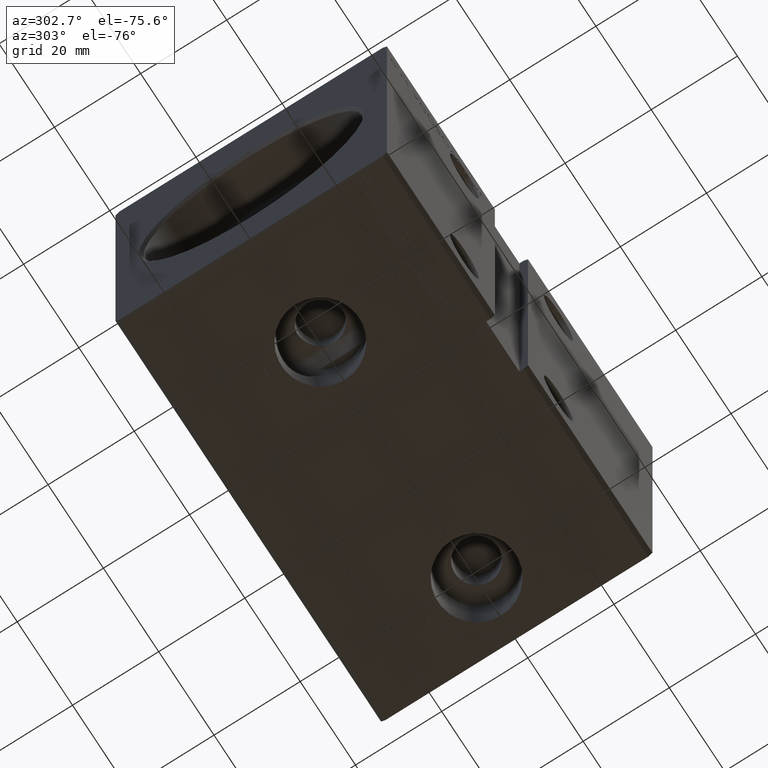
[diagram: clean part render]
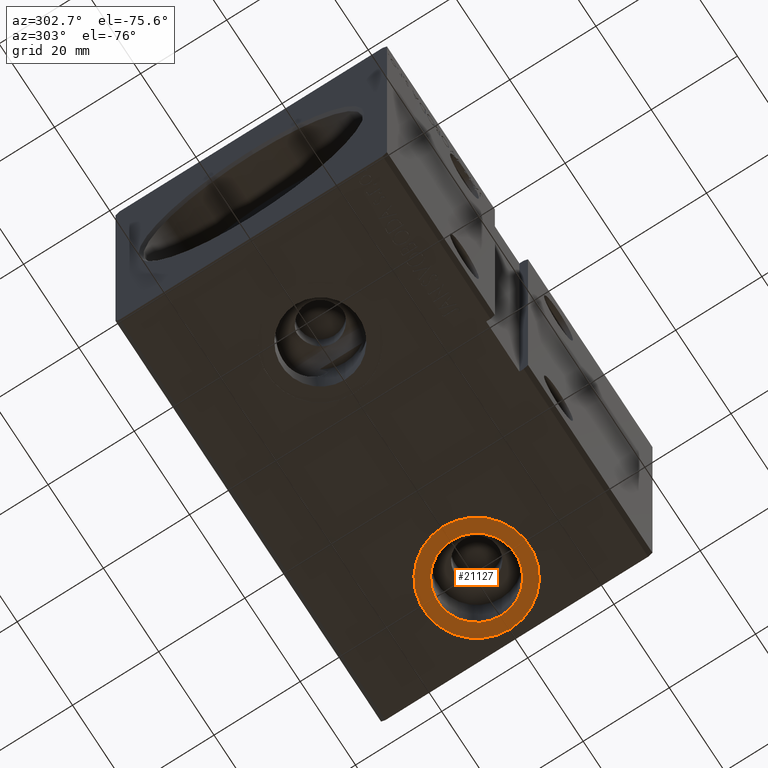
[diagram: same view with one face highlighted and labeled with its STEP entity id]
A machine part, auxiliary view. The second image highlights one B-rep face of the part: STEP entity #21127.
In plain terms, the highlighted planar face has unit normal (0, 0, -1).
Its self-contained STEP definition (entity closure, byte-faithful):
#1695 = CIRCLE ( 'NONE', #6980, 12.24999999999999645 ) ;
#5604 = CIRCLE ( 'NONE', #22813, 12.24999999999999645 ) ;
#6269 = DIRECTION ( 'NONE',  ( 0.000000000000000000, 0.000000000000000000, -1.000000000000000000 ) ) ;
#6493 = EDGE_CURVE ( 'NONE', #7454, #15627, #40913, .T. ) ;
#6518 = CARTESIAN_POINT ( 'NONE',  ( 90.50000000000000000, -8.809205824358827446E-15, -42.40000000000000568 ) ) ;
#6710 = CIRCLE ( 'NONE', #40456, 8.999999999999994671 ) ;
#6980 = AXIS2_PLACEMENT_3D ( 'NONE', #22647, #13534, #38164 ) ;
#7454 = VERTEX_POINT ( 'NONE', #33016 ) ;
#10671 = ORIENTED_EDGE ( 'NONE', *, *, #22581, .T. ) ;
#11229 = ORIENTED_EDGE ( 'NONE', *, *, #26315, .T. ) ;
#13534 = DIRECTION ( 'NONE',  ( 0.000000000000000000, 0.000000000000000000, -1.000000000000000000 ) ) ;
#14878 = VERTEX_POINT ( 'NONE', #16672 ) ;
#15135 = DIRECTION ( 'NONE',  ( -1.000000000000000000, 0.000000000000000000, 0.000000000000000000 ) ) ;
#15326 = VERTEX_POINT ( 'NONE', #36020 ) ;
#15401 = DIRECTION ( 'NONE',  ( -1.000000000000000000, 0.000000000000000000, 0.000000000000000000 ) ) ;
#15627 = VERTEX_POINT ( 'NONE', #6518 ) ;
#16672 = CARTESIAN_POINT ( 'NONE',  ( 69.25000000000000000, -9.911387943591445357E-15, -42.40000000000000568 ) ) ;
#18459 = DIRECTION ( 'NONE',  ( 0.000000000000000000, 0.000000000000000000, -1.000000000000000000 ) ) ;
#18613 = DIRECTION ( 'NONE',  ( 0.000000000000000000, 0.000000000000000000, -1.000000000000000000 ) ) ;
#18808 = CARTESIAN_POINT ( 'NONE',  ( 81.50000000000000000, -9.911387943591445357E-15, -42.40000000000000568 ) ) ;
#21127 = ADVANCED_FACE ( 'NONE', ( #30620, #36823 ), #39935, .T. ) ;
#21518 = DIRECTION ( 'NONE',  ( -1.000000000000000000, 0.000000000000000000, -0.000000000000000000 ) ) ;
#21593 = DIRECTION ( 'NONE',  ( 0.000000000000000000, 0.000000000000000000, -1.000000000000000000 ) ) ;
#22581 = EDGE_CURVE ( 'NONE', #15326, #14878, #5604, .T. ) ;
#22647 = CARTESIAN_POINT ( 'NONE',  ( 81.50000000000000000, -9.911387943591445357E-15, -42.40000000000000568 ) ) ;
#22803 = EDGE_LOOP ( 'NONE', ( #11229, #10671 ) ) ;
#22813 = AXIS2_PLACEMENT_3D ( 'NONE', #40212, #21593, #39807 ) ;
#23076 = AXIS2_PLACEMENT_3D ( 'NONE', #25130, #6269, #15401 ) ;
#24350 = EDGE_LOOP ( 'NONE', ( #28039, #38796 ) ) ;
#25130 = CARTESIAN_POINT ( 'NONE',  ( 81.50000000000000000, -9.911387943591445357E-15, -42.40000000000000568 ) ) ;
#26315 = EDGE_CURVE ( 'NONE', #14878, #15326, #1695, .T. ) ;
#28039 = ORIENTED_EDGE ( 'NONE', *, *, #6493, .F. ) ;
#29386 = AXIS2_PLACEMENT_3D ( 'NONE', #18808, #18613, #21518 ) ;
#29966 = EDGE_CURVE ( 'NONE', #15627, #7454, #6710, .T. ) ;
#30620 = FACE_BOUND ( 'NONE', #24350, .T. ) ;
#33016 = CARTESIAN_POINT ( 'NONE',  ( 72.50000000000001421, -9.911387943591445357E-15, -42.40000000000000568 ) ) ;
#33765 = CARTESIAN_POINT ( 'NONE',  ( 81.50000000000000000, -9.911387943591445357E-15, -42.40000000000000568 ) ) ;
#36020 = CARTESIAN_POINT ( 'NONE',  ( 93.75000000000001421, -8.411195614635935059E-15, -42.40000000000000568 ) ) ;
#36823 = FACE_OUTER_BOUND ( 'NONE', #22803, .T. ) ;
#38164 = DIRECTION ( 'NONE',  ( -1.000000000000000000, 0.000000000000000000, 0.000000000000000000 ) ) ;
#38796 = ORIENTED_EDGE ( 'NONE', *, *, #29966, .F. ) ;
#39807 = DIRECTION ( 'NONE',  ( -1.000000000000000000, 0.000000000000000000, 0.000000000000000000 ) ) ;
#39935 = PLANE ( 'NONE',  #29386 ) ;
#40212 = CARTESIAN_POINT ( 'NONE',  ( 81.50000000000000000, -9.911387943591445357E-15, -42.40000000000000568 ) ) ;
#40456 = AXIS2_PLACEMENT_3D ( 'NONE', #33765, #18459, #15135 ) ;
#40913 = CIRCLE ( 'NONE', #23076, 8.999999999999994671 ) ;